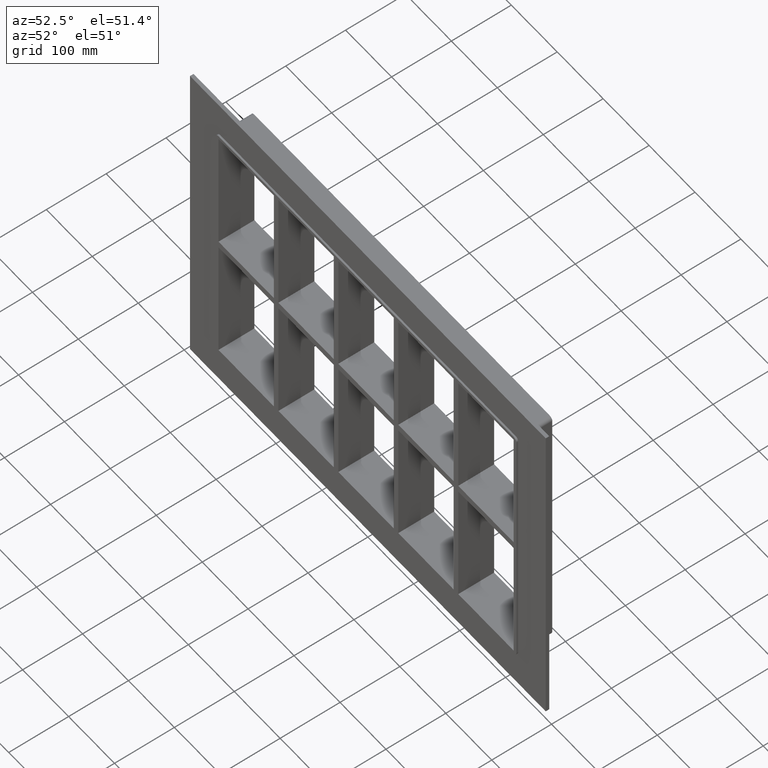
[diagram: clean part render]
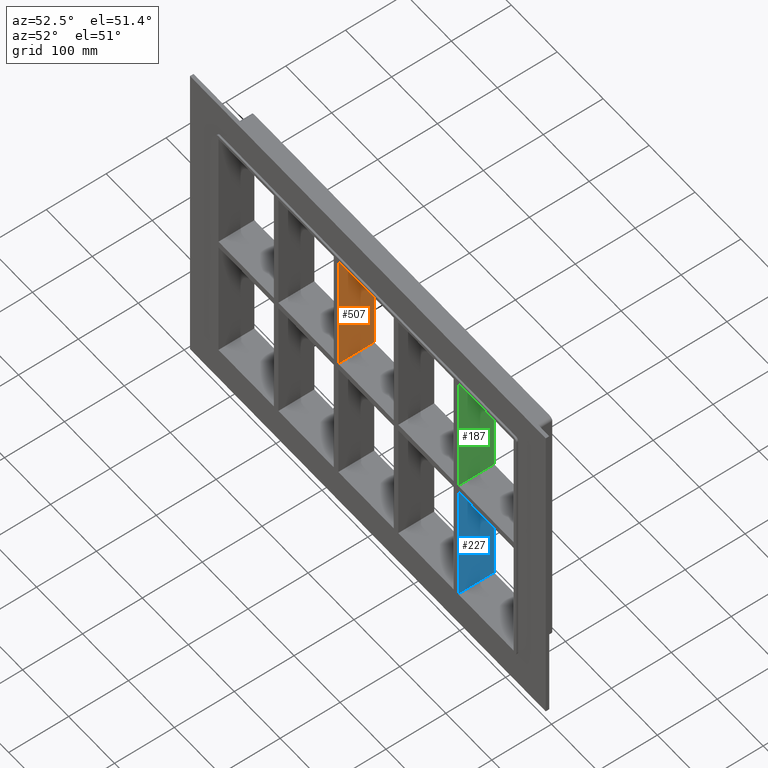
[diagram: same view with three faces highlighted in distinct colors, each labeled with its STEP entity id]
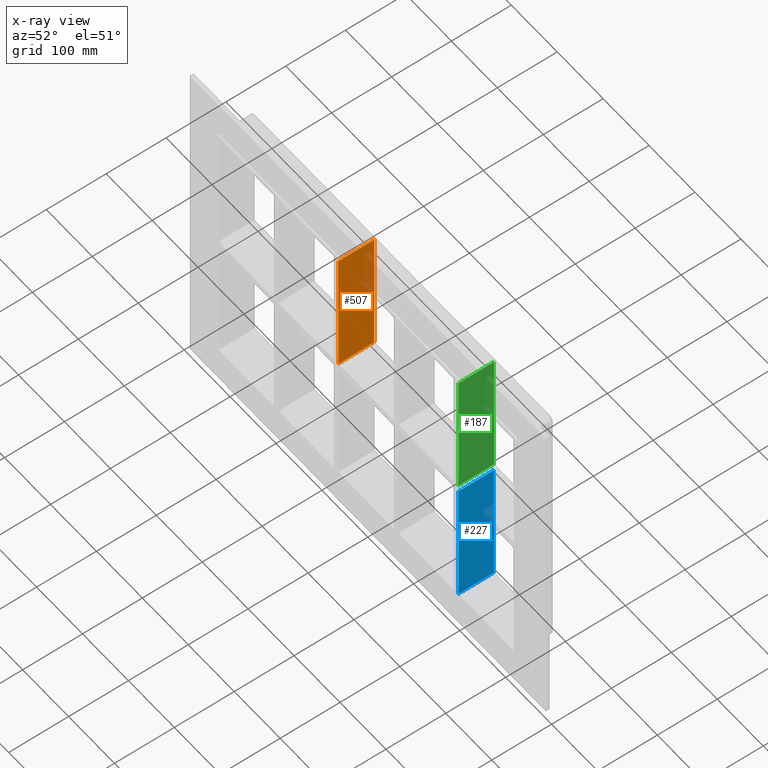
[diagram: x-ray of the same camera — body ghosted, the three highlighted faces saturated]
A machine part, auxiliary view with three faces highlighted in distinct colors.
The next image is the same camera in x-ray (body ghosted, the three faces saturated) — at least one of them is partly hidden behind the body in this view.
Their STEP definitions:

[orange] entity #507 — the highlighted planar face has unit normal (1, 0, 0).
#468=CARTESIAN_POINT('',(-60.250000000007269,-3.0,224.00000000000006));
#469=DIRECTION('',(1.0,0.0,0.0));
#470=DIRECTION('',(0.0,0.0,-1.0));
#471=AXIS2_PLACEMENT_3D('',#468,#469,#470);
#472=PLANE('',#471);
#473=CARTESIAN_POINT('',(-60.250000000007269,57.0,5.999999999999943));
#474=VERTEX_POINT('',#473);
#475=CARTESIAN_POINT('',(-60.250000000007269,-3.0,5.999999999999943));
#476=VERTEX_POINT('',#475);
#477=CARTESIAN_POINT('',(-60.25000000000729,57.0,5.999999999999943));
#478=DIRECTION('',(0.0,-1.0,0.0));
#479=VECTOR('',#478,60.0);
#480=LINE('',#477,#479);
#481=EDGE_CURVE('',#474,#476,#480,.T.);
#482=ORIENTED_EDGE('',*,*,#481,.F.);
#483=CARTESIAN_POINT('',(-60.250000000007269,57.0,224.00000000000006));
#484=VERTEX_POINT('',#483);
#485=CARTESIAN_POINT('',(-60.250000000007269,57.0,224.00000000000006));
#486=DIRECTION('',(0.0,0.0,-1.0));
#487=VECTOR('',#486,218.00000000000011);
#488=LINE('',#485,#487);
#489=EDGE_CURVE('',#484,#474,#488,.T.);
#490=ORIENTED_EDGE('',*,*,#489,.F.);
#491=CARTESIAN_POINT('',(-60.250000000007269,-3.0,224.00000000000006));
#492=VERTEX_POINT('',#491);
#493=CARTESIAN_POINT('',(-60.25000000000729,-3.0,224.00000000000003));
#494=DIRECTION('',(0.0,1.0,0.0));
#495=VECTOR('',#494,60.000000000000007);
#496=LINE('',#493,#495);
#497=EDGE_CURVE('',#492,#484,#496,.T.);
#498=ORIENTED_EDGE('',*,*,#497,.F.);
#499=CARTESIAN_POINT('',(-60.250000000007269,-3.0,224.00000000000006));
#500=DIRECTION('',(0.0,0.0,-1.0));
#501=VECTOR('',#500,218.00000000000011);
#502=LINE('',#499,#501);
#503=EDGE_CURVE('',#492,#476,#502,.T.);
#504=ORIENTED_EDGE('',*,*,#503,.T.);
#505=EDGE_LOOP('',(#482,#490,#498,#504));
#506=FACE_OUTER_BOUND('',#505,.T.);
#507=ADVANCED_FACE('',(#506),#472,.T.);

[blue] entity #227 — the highlighted planar face has unit normal (1, 0, 0).
#188=CARTESIAN_POINT('',(200.74999999999278,-3.0,224.00000000000006));
#189=DIRECTION('',(1.0,0.0,0.0));
#190=DIRECTION('',(0.0,0.0,-1.0));
#191=AXIS2_PLACEMENT_3D('',#188,#189,#190);
#192=PLANE('',#191);
#193=CARTESIAN_POINT('',(200.74999999999278,-3.0,-6.000000000009251));
#194=VERTEX_POINT('',#193);
#195=CARTESIAN_POINT('',(200.74999999999278,57.0,-6.000000000009251));
#196=VERTEX_POINT('',#195);
#197=CARTESIAN_POINT('',(200.74999999999278,-3.0,-6.000000000009269));
#198=DIRECTION('',(0.0,1.0,0.0));
#199=VECTOR('',#198,60.0);
#200=LINE('',#197,#199);
#201=EDGE_CURVE('',#194,#196,#200,.T.);
#202=ORIENTED_EDGE('',*,*,#201,.F.);
#203=CARTESIAN_POINT('',(200.74999999999278,-3.0,-223.99999999998431));
#204=VERTEX_POINT('',#203);
#205=CARTESIAN_POINT('',(200.74999999999278,-3.0,-6.000000000009266));
#206=DIRECTION('',(0.0,0.0,-1.0));
#207=VECTOR('',#206,217.99999999997499);
#208=LINE('',#205,#207);
#209=EDGE_CURVE('',#194,#204,#208,.T.);
#210=ORIENTED_EDGE('',*,*,#209,.T.);
#211=CARTESIAN_POINT('',(200.74999999999278,57.0,-223.99999999998428));
#212=VERTEX_POINT('',#211);
#213=CARTESIAN_POINT('',(200.74999999999278,57.000000000000007,-224.00000000000006));
#214=DIRECTION('',(0.0,-1.0,0.0));
#215=VECTOR('',#214,60.000000000000007);
#216=LINE('',#213,#215);
#217=EDGE_CURVE('',#212,#204,#216,.T.);
#218=ORIENTED_EDGE('',*,*,#217,.F.);
#219=CARTESIAN_POINT('',(200.74999999999278,57.0,-6.000000000009266));
#220=DIRECTION('',(0.0,0.0,-1.0));
#221=VECTOR('',#220,217.99999999997499);
#222=LINE('',#219,#221);
#223=EDGE_CURVE('',#196,#212,#222,.T.);
#224=ORIENTED_EDGE('',*,*,#223,.F.);
#225=EDGE_LOOP('',(#202,#210,#218,#224));
#226=FACE_OUTER_BOUND('',#225,.T.);
#227=ADVANCED_FACE('',(#226),#192,.T.);

[green] entity #187 — the highlighted planar face has unit normal (1, 0, 0).
#148=CARTESIAN_POINT('',(200.74999999999278,-3.0,224.00000000000006));
#149=DIRECTION('',(1.0,0.0,0.0));
#150=DIRECTION('',(0.0,0.0,-1.0));
#151=AXIS2_PLACEMENT_3D('',#148,#149,#150);
#152=PLANE('',#151);
#153=CARTESIAN_POINT('',(200.74999999999278,57.0,5.999999999999943));
#154=VERTEX_POINT('',#153);
#155=CARTESIAN_POINT('',(200.74999999999278,-3.0,5.999999999999943));
#156=VERTEX_POINT('',#155);
#157=CARTESIAN_POINT('',(200.74999999999278,57.0,5.999999999999943));
#158=DIRECTION('',(0.0,-1.0,0.0));
#159=VECTOR('',#158,60.0);
#160=LINE('',#157,#159);
#161=EDGE_CURVE('',#154,#156,#160,.T.);
#162=ORIENTED_EDGE('',*,*,#161,.F.);
#163=CARTESIAN_POINT('',(200.74999999999278,57.0,224.00000000000006));
#164=VERTEX_POINT('',#163);
#165=CARTESIAN_POINT('',(200.74999999999278,57.0,224.00000000000006));
#166=DIRECTION('',(0.0,0.0,-1.0));
#167=VECTOR('',#166,218.00000000000011);
#168=LINE('',#165,#167);
#169=EDGE_CURVE('',#164,#154,#168,.T.);
#170=ORIENTED_EDGE('',*,*,#169,.F.);
#171=CARTESIAN_POINT('',(200.74999999999278,-3.0,224.00000000000006));
#172=VERTEX_POINT('',#171);
#173=CARTESIAN_POINT('',(200.74999999999278,-3.0,224.00000000000003));
#174=DIRECTION('',(0.0,1.0,0.0));
#175=VECTOR('',#174,60.000000000000007);
#176=LINE('',#173,#175);
#177=EDGE_CURVE('',#172,#164,#176,.T.);
#178=ORIENTED_EDGE('',*,*,#177,.F.);
#179=CARTESIAN_POINT('',(200.74999999999278,-3.0,224.00000000000006));
#180=DIRECTION('',(0.0,0.0,-1.0));
#181=VECTOR('',#180,218.00000000000011);
#182=LINE('',#179,#181);
#183=EDGE_CURVE('',#172,#156,#182,.T.);
#184=ORIENTED_EDGE('',*,*,#183,.T.);
#185=EDGE_LOOP('',(#162,#170,#178,#184));
#186=FACE_OUTER_BOUND('',#185,.T.);
#187=ADVANCED_FACE('',(#186),#152,.T.);